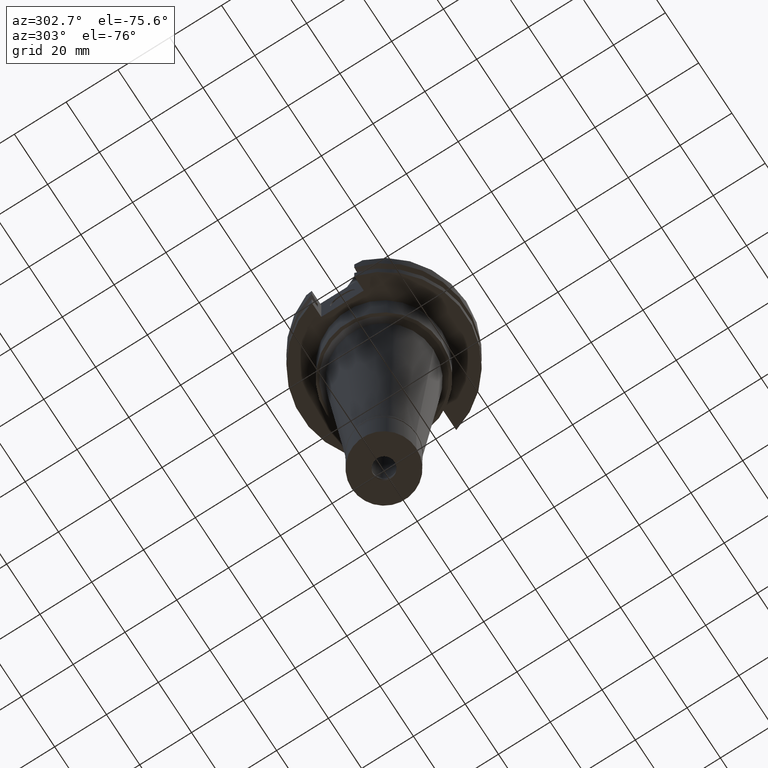
[diagram: clean part render]
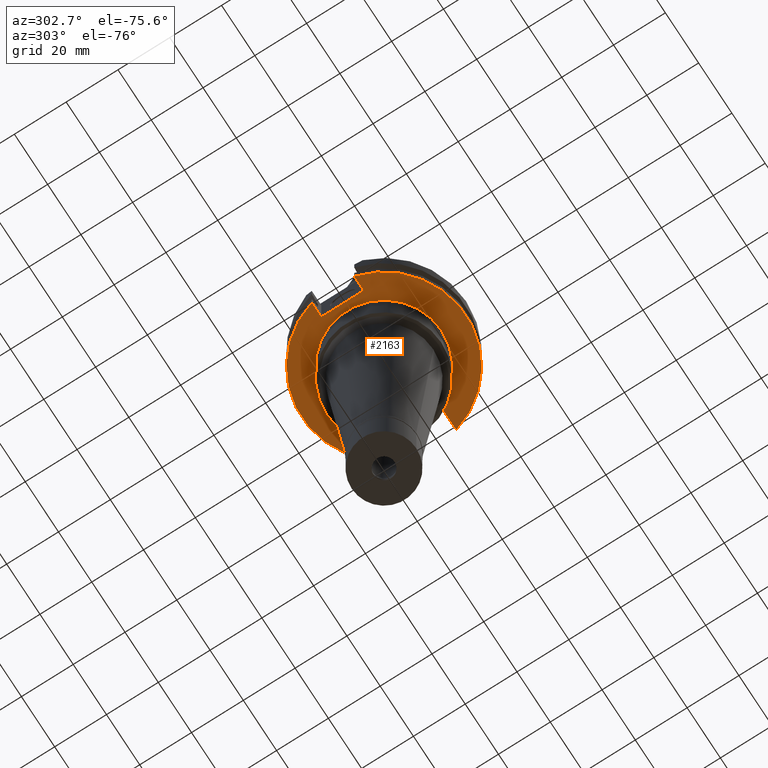
[diagram: same view with one face highlighted and labeled with its STEP entity id]
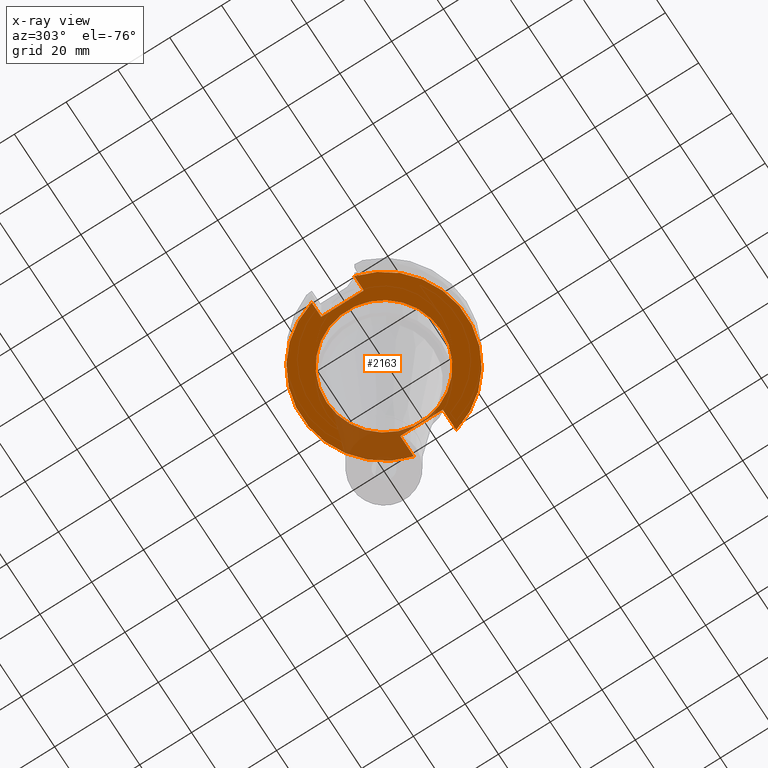
[diagram: x-ray of the same camera — body ghosted, the highlighted face saturated]
A machine part, auxiliary view. The second image highlights one B-rep face of the part: STEP entity #2163.
The next image is the same camera in x-ray: the body ghosted, the highlighted face saturated — about 17% of this face is hidden behind the body in this view.
In plain terms, the highlighted planar face has unit normal (0, 0, -1).
Its self-contained STEP definition (entity closure, byte-faithful):
#14 = EDGE_LOOP ( 'NONE', ( #1306, #2872 ) ) ;
#19 = CARTESIAN_POINT ( 'NONE',  ( 0.0000000000000000000, 2.191780992603999821E-14, -19.05000000000000071 ) ) ;
#92 = EDGE_CURVE ( 'NONE', #1514, #1027, #2529, .T. ) ;
#130 = LINE ( 'NONE', #3318, #2750 ) ;
#168 = EDGE_CURVE ( 'NONE', #225, #2430, #806, .T. ) ;
#195 = ORIENTED_EDGE ( 'NONE', *, *, #2761, .T. ) ;
#209 = ORIENTED_EDGE ( 'NONE', *, *, #1310, .T. ) ;
#225 = VERTEX_POINT ( 'NONE', #2586 ) ;
#283 = CARTESIAN_POINT ( 'NONE',  ( 22.57000000000000028, 8.189999999999999503, -19.05000000000000071 ) ) ;
#294 = EDGE_CURVE ( 'NONE', #2077, #1734, #1945, .T. ) ;
#344 = ORIENTED_EDGE ( 'NONE', *, *, #1918, .T. ) ;
#380 = VERTEX_POINT ( 'NONE', #1338 ) ;
#400 = DIRECTION ( 'NONE',  ( 0.0000000000000000000, 1.000000000000000000, 0.0000000000000000000 ) ) ;
#426 = CARTESIAN_POINT ( 'NONE',  ( 0.0000000000000000000, 0.0000000000000000000, -19.05000000000000071 ) ) ;
#483 = DIRECTION ( 'NONE',  ( 1.000000000000000000, 0.0000000000000000000, 0.0000000000000000000 ) ) ;
#582 = DIRECTION ( 'NONE',  ( -1.000000000000000000, 0.0000000000000000000, 0.0000000000000000000 ) ) ;
#592 = EDGE_LOOP ( 'NONE', ( #195, #2999, #3063, #1221, #209, #3082, #1367, #344 ) ) ;
#609 = EDGE_CURVE ( 'NONE', #3148, #2077, #130, .T. ) ;
#615 = CIRCLE ( 'NONE', #2806, 22.22500000000000142 ) ;
#639 = CARTESIAN_POINT ( 'NONE',  ( 22.57000000000000028, -8.189999999999999503, -19.05000000000000071 ) ) ;
#698 = FACE_BOUND ( 'NONE', #14, .T. ) ;
#709 = CARTESIAN_POINT ( 'NONE',  ( 0.0000000000000000000, 2.191780992603999821E-14, -19.05000000000000071 ) ) ;
#751 = DIRECTION ( 'NONE',  ( 0.0000000000000000000, 0.0000000000000000000, -1.000000000000000000 ) ) ;
#806 = CIRCLE ( 'NONE', #2553, 31.75000000000000000 ) ;
#875 = LINE ( 'NONE', #2437, #2265 ) ;
#889 = CARTESIAN_POINT ( 'NONE',  ( 0.0000000000000000000, 2.191780992603999821E-14, -19.05000000000000071 ) ) ;
#892 = CARTESIAN_POINT ( 'NONE',  ( -24.98000000000000043, 8.189999999999999503, -19.05000000000000071 ) ) ;
#902 = VECTOR ( 'NONE', #1606, 1000.000000000000000 ) ;
#961 = CIRCLE ( 'NONE', #2929, 22.22500000000000142 ) ;
#966 = CARTESIAN_POINT ( 'NONE',  ( 30.67550162588999640, 8.189999999999999503, -19.05000000000000071 ) ) ;
#977 = CARTESIAN_POINT ( 'NONE',  ( -24.98000000000000043, -8.189999999999999503, -19.05000000000000071 ) ) ;
#985 = CARTESIAN_POINT ( 'NONE',  ( 22.57000000000000028, -8.189999999999999503, -19.05000000000000071 ) ) ;
#1027 = VERTEX_POINT ( 'NONE', #2554 ) ;
#1205 = EDGE_CURVE ( 'NONE', #1448, #380, #615, .T. ) ;
#1221 = ORIENTED_EDGE ( 'NONE', *, *, #92, .F. ) ;
#1275 = PLANE ( 'NONE',  #1614 ) ;
#1306 = ORIENTED_EDGE ( 'NONE', *, *, #2292, .F. ) ;
#1310 = EDGE_CURVE ( 'NONE', #1514, #1734, #875, .T. ) ;
#1321 = CARTESIAN_POINT ( 'NONE',  ( -30.67550162588999640, 8.189999999999999503, -19.05000000000000071 ) ) ;
#1338 = CARTESIAN_POINT ( 'NONE',  ( 0.0000000000000000000, 22.22500000000000142, -19.05000000000000071 ) ) ;
#1367 = ORIENTED_EDGE ( 'NONE', *, *, #609, .F. ) ;
#1385 = LINE ( 'NONE', #1878, #902 ) ;
#1448 = VERTEX_POINT ( 'NONE', #2787 ) ;
#1477 = DIRECTION ( 'NONE',  ( 0.0000000000000000000, -1.000000000000000000, 0.0000000000000000000 ) ) ;
#1514 = VERTEX_POINT ( 'NONE', #1752 ) ;
#1535 = EDGE_CURVE ( 'NONE', #1027, #225, #2751, .T. ) ;
#1581 = DIRECTION ( 'NONE',  ( 0.0000000000000000000, -1.000000000000000000, 0.0000000000000000000 ) ) ;
#1606 = DIRECTION ( 'NONE',  ( 0.0000000000000000000, -1.000000000000000000, 0.0000000000000000000 ) ) ;
#1608 = DIRECTION ( 'NONE',  ( 0.0000000000000000000, 0.0000000000000000000, 1.000000000000000000 ) ) ;
#1614 = AXIS2_PLACEMENT_3D ( 'NONE', #426, #3078, #1477 ) ;
#1734 = VERTEX_POINT ( 'NONE', #1321 ) ;
#1752 = CARTESIAN_POINT ( 'NONE',  ( -24.98000000000000043, 8.189999999999999503, -19.05000000000000071 ) ) ;
#1784 = AXIS2_PLACEMENT_3D ( 'NONE', #2654, #1608, #1864 ) ;
#1864 = DIRECTION ( 'NONE',  ( 0.0000000000000000000, 1.000000000000000000, 0.0000000000000000000 ) ) ;
#1878 = CARTESIAN_POINT ( 'NONE',  ( 22.57000000000000028, 8.189999999999999503, -19.05000000000000071 ) ) ;
#1918 = EDGE_CURVE ( 'NONE', #3148, #2978, #1385, .T. ) ;
#1945 = CIRCLE ( 'NONE', #1784, 31.75000000000000000 ) ;
#1958 = DIRECTION ( 'NONE',  ( 0.0000000000000000000, 0.0000000000000000000, -1.000000000000000000 ) ) ;
#2014 = DIRECTION ( 'NONE',  ( -1.000000000000000000, 0.0000000000000000000, 0.0000000000000000000 ) ) ;
#2030 = DIRECTION ( 'NONE',  ( 0.0000000000000000000, -1.000000000000000000, 0.0000000000000000000 ) ) ;
#2067 = DIRECTION ( 'NONE',  ( 0.0000000000000000000, 0.0000000000000000000, 1.000000000000000000 ) ) ;
#2077 = VERTEX_POINT ( 'NONE', #966 ) ;
#2163 = ADVANCED_FACE ( 'NONE', ( #2759, #698 ), #1275, .T. ) ;
#2265 = VECTOR ( 'NONE', #582, 1000.000000000000000 ) ;
#2282 = VECTOR ( 'NONE', #2775, 1000.000000000000000 ) ;
#2292 = EDGE_CURVE ( 'NONE', #380, #1448, #961, .T. ) ;
#2430 = VERTEX_POINT ( 'NONE', #3356 ) ;
#2437 = CARTESIAN_POINT ( 'NONE',  ( -24.98000000000000043, 8.189999999999999503, -19.05000000000000071 ) ) ;
#2529 = LINE ( 'NONE', #892, #2282 ) ;
#2533 = VECTOR ( 'NONE', #2014, 1000.000000000000000 ) ;
#2553 = AXIS2_PLACEMENT_3D ( 'NONE', #709, #2067, #1581 ) ;
#2554 = CARTESIAN_POINT ( 'NONE',  ( -24.98000000000000043, -8.189999999999999503, -19.05000000000000071 ) ) ;
#2586 = CARTESIAN_POINT ( 'NONE',  ( -30.67550162588999640, -8.189999999999999503, -19.05000000000000071 ) ) ;
#2654 = CARTESIAN_POINT ( 'NONE',  ( 0.0000000000000000000, 2.191780992603999821E-14, -19.05000000000000071 ) ) ;
#2681 = DIRECTION ( 'NONE',  ( 1.000000000000000000, 0.0000000000000000000, 0.0000000000000000000 ) ) ;
#2750 = VECTOR ( 'NONE', #483, 1000.000000000000000 ) ;
#2751 = LINE ( 'NONE', #977, #2533 ) ;
#2759 = FACE_OUTER_BOUND ( 'NONE', #592, .T. ) ;
#2761 = EDGE_CURVE ( 'NONE', #2978, #2430, #2986, .T. ) ;
#2775 = DIRECTION ( 'NONE',  ( 0.0000000000000000000, -1.000000000000000000, 0.0000000000000000000 ) ) ;
#2787 = CARTESIAN_POINT ( 'NONE',  ( 0.0000000000000000000, -22.22500000000000142, -19.05000000000000071 ) ) ;
#2806 = AXIS2_PLACEMENT_3D ( 'NONE', #19, #751, #2030 ) ;
#2872 = ORIENTED_EDGE ( 'NONE', *, *, #1205, .F. ) ;
#2929 = AXIS2_PLACEMENT_3D ( 'NONE', #889, #1958, #400 ) ;
#2978 = VERTEX_POINT ( 'NONE', #985 ) ;
#2982 = VECTOR ( 'NONE', #2681, 1000.000000000000000 ) ;
#2986 = LINE ( 'NONE', #639, #2982 ) ;
#2999 = ORIENTED_EDGE ( 'NONE', *, *, #168, .F. ) ;
#3063 = ORIENTED_EDGE ( 'NONE', *, *, #1535, .F. ) ;
#3078 = DIRECTION ( 'NONE',  ( 0.0000000000000000000, 0.0000000000000000000, -1.000000000000000000 ) ) ;
#3082 = ORIENTED_EDGE ( 'NONE', *, *, #294, .F. ) ;
#3148 = VERTEX_POINT ( 'NONE', #283 ) ;
#3318 = CARTESIAN_POINT ( 'NONE',  ( 22.57000000000000028, 8.189999999999999503, -19.05000000000000071 ) ) ;
#3356 = CARTESIAN_POINT ( 'NONE',  ( 30.67550162588999640, -8.189999999999999503, -19.05000000000000071 ) ) ;